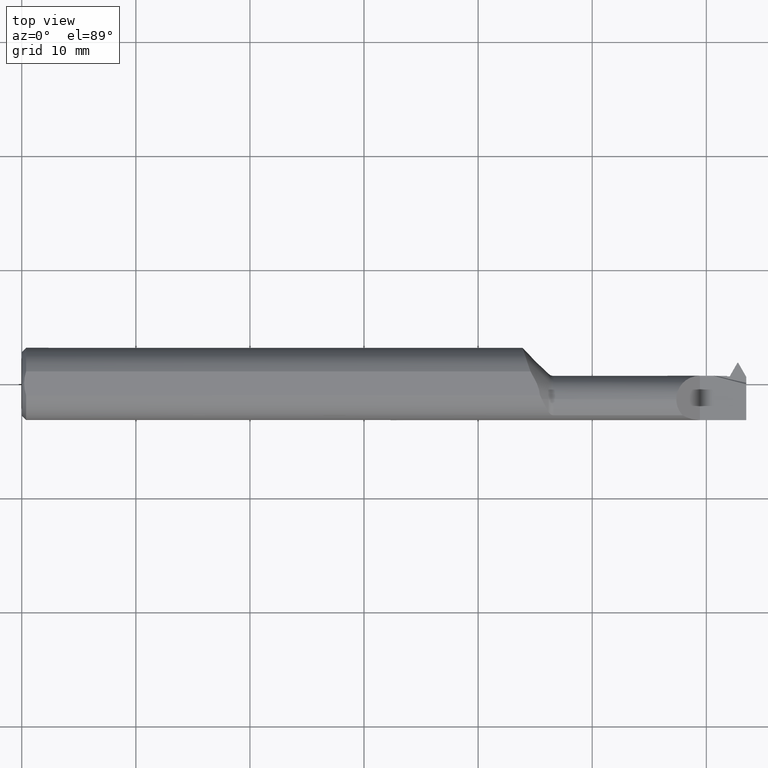
[diagram: clean part render]
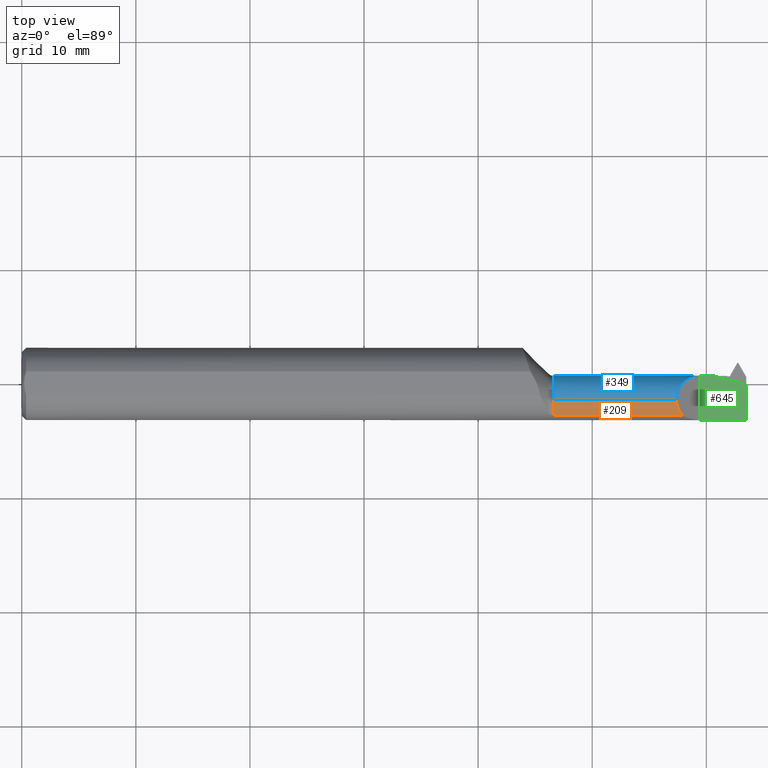
[diagram: same view with three faces highlighted in distinct colors, each labeled with its STEP entity id]
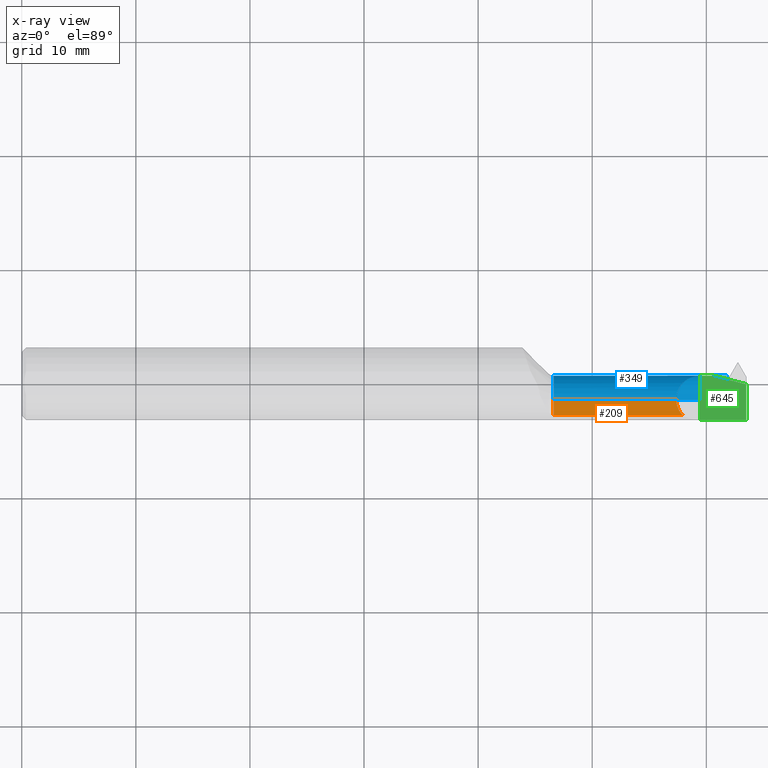
[diagram: x-ray of the same camera — body ghosted, the three highlighted faces saturated]
A machine part, top view with three faces highlighted in distinct colors.
The next image is the same camera in x-ray (body ghosted, the three faces saturated) — at least one of them is partly hidden behind the body in this view.
Their STEP definitions:

[orange] entity #209 — the highlighted cylindrical surface (edge-blend (fillet) strip) has radius 2.0828 mm, axis along (-1, -0, -0).
#6 = CARTESIAN_POINT ( 'NONE',  ( 2.258649999999999380, -0.05384999999999989101, 0.08200000000000000344 ) ) ;
#7 = DIRECTION ( 'NONE',  ( 1.000000000000000000, 0.000000000000000000, 0.000000000000000000 ) ) ;
#10 = EDGE_CURVE ( 'NONE', #181, #573, #875, .T. ) ;
#27 = CARTESIAN_POINT ( 'NONE',  ( 1.824999999999999956, -0.05384999999999989101, 0.000000000000000000 ) ) ;
#69 = CARTESIAN_POINT ( 'NONE',  ( 1.835355339059327129, -0.1092232590529249175, 0.06047976671464317527 ) ) ;
#95 = CIRCLE ( 'NONE', #994, 0.08200000000000000344 ) ;
#101 = ORIENTED_EDGE ( 'NONE', *, *, #801, .T. ) ;
#132 = DIRECTION ( 'NONE',  ( 1.000000000000000000, 0.000000000000000000, 0.000000000000000000 ) ) ;
#150 = LINE ( 'NONE', #226, #986 ) ;
#181 = VERTEX_POINT ( 'NONE', #315 ) ;
#191 = VERTEX_POINT ( 'NONE', #69 ) ;
#206 = DIRECTION ( 'NONE',  ( -1.000000000000000000, -0.000000000000000000, -0.000000000000000000 ) ) ;
#209 = ADVANCED_FACE ( 'NONE', ( #477 ), #262, .T. ) ;
#226 = CARTESIAN_POINT ( 'NONE',  ( 2.132500000000000284, -0.1092232590529249175, 0.06047976671464317527 ) ) ;
#228 = DIRECTION ( 'NONE',  ( 0.000000000000000000, 0.000000000000000000, 1.000000000000000000 ) ) ;
#262 = CYLINDRICAL_SURFACE ( 'NONE', #794, 0.08200000000000000344 ) ;
#272 = ORIENTED_EDGE ( 'NONE', *, *, #324, .T. ) ;
#315 = CARTESIAN_POINT ( 'NONE',  ( 2.280170233285356840, -0.1092232590529250702, 0.06047976671464286996 ) ) ;
#324 = EDGE_CURVE ( 'NONE', #573, #708, #774, .T. ) ;
#369 = ORIENTED_EDGE ( 'NONE', *, *, #10, .T. ) ;
#377 = CARTESIAN_POINT ( 'NONE',  ( 2.266163611464082628, -0.09392495018146776453, 0.07448638853591689479 ) ) ;
#428 = DIRECTION ( 'NONE',  ( 0.000000000000000000, 0.000000000000000000, 1.000000000000000000 ) ) ;
#477 = FACE_OUTER_BOUND ( 'NONE', #887, .T. ) ;
#573 = VERTEX_POINT ( 'NONE', #6 ) ;
#621 = CARTESIAN_POINT ( 'NONE',  ( 1.824999999999999956, -0.05384999999999989101, 0.08200000000000000344 ) ) ;
#672 = CARTESIAN_POINT ( 'NONE',  ( 2.280170233285356840, -0.1092232590529250702, 0.06047976671464286996 ) ) ;
#708 = VERTEX_POINT ( 'NONE', #921 ) ;
#754 = CARTESIAN_POINT ( 'NONE',  ( 2.258649999999999380, -0.05384999999999989101, 0.08200000000000000344 ) ) ;
#774 = LINE ( 'NONE', #621, #1032 ) ;
#794 = AXIS2_PLACEMENT_3D ( 'NONE', #27, #908, #428 ) ;
#801 = EDGE_CURVE ( 'NONE', #708, #191, #95, .T. ) ;
#875 =( BOUNDED_CURVE ( )  B_SPLINE_CURVE ( 3, ( #672, #377, #997, #754 ),
 .UNSPECIFIED., .F., .T. ) 
 B_SPLINE_CURVE_WITH_KNOTS ( ( 4, 4 ),
 ( 5.541836096877562845, 6.283185307179586232 ),
 .UNSPECIFIED. ) 
 CURVE ( )  GEOMETRIC_REPRESENTATION_ITEM ( )  RATIONAL_B_SPLINE_CURVE ( ( 1.000000000000000000, 0.9547221238960315048, 0.9547221238960315048, 1.000000000000000000 ) ) 
 REPRESENTATION_ITEM ( '' )  );
#876 = EDGE_CURVE ( 'NONE', #191, #181, #150, .T. ) ;
#887 = EDGE_LOOP ( 'NONE', ( #369, #272, #101, #951 ) ) ;
#908 = DIRECTION ( 'NONE',  ( -1.000000000000000000, -0.000000000000000000, -0.000000000000000000 ) ) ;
#921 = CARTESIAN_POINT ( 'NONE',  ( 1.835355339059327129, -0.05384999999999989101, 0.08200000000000000344 ) ) ;
#935 = CARTESIAN_POINT ( 'NONE',  ( 1.835355339059327129, -0.05384999999999989101, 0.000000000000000000 ) ) ;
#951 = ORIENTED_EDGE ( 'NONE', *, *, #876, .T. ) ;
#986 = VECTOR ( 'NONE', #7, 39.37007874015748143 ) ;
#994 = AXIS2_PLACEMENT_3D ( 'NONE', #935, #132, #228 ) ;
#997 = CARTESIAN_POINT ( 'NONE',  ( 2.258649999999998936, -0.07459183475902490812, 0.08200000000000004508 ) ) ;
#1032 = VECTOR ( 'NONE', #206, 39.37007874015748143 ) ;

[blue] entity #349 — the highlighted cylindrical surface (edge-blend (fillet) strip) has radius 2.0828 mm, axis along (-1, -0, -0).
#2 = DIRECTION ( 'NONE',  ( 0.000000000000000000, 0.000000000000000000, 1.000000000000000000 ) ) ;
#6 = CARTESIAN_POINT ( 'NONE',  ( 2.258649999999999380, -0.05384999999999989101, 0.08200000000000000344 ) ) ;
#35 = EDGE_LOOP ( 'NONE', ( #176, #82, #292, #757, #738, #232, #425, #805, #59, #346, #979 ) ) ;
#57 = CARTESIAN_POINT ( 'NONE',  ( 1.824999999999999956, -0.05384999999999988407, -0.08200000000000000344 ) ) ;
#59 = ORIENTED_EDGE ( 'NONE', *, *, #131, .T. ) ;
#73 = CARTESIAN_POINT ( 'NONE',  ( 2.399523977456262447, 0.02805503894144341023, -0.003945199107859770522 ) ) ;
#82 = ORIENTED_EDGE ( 'NONE', *, *, #88, .T. ) ;
#88 = EDGE_CURVE ( 'NONE', #341, #384, #984, .T. ) ;
#90 = CARTESIAN_POINT ( 'NONE',  ( 2.340000000000000302, -0.05384999999999989101, 0.000000000000000000 ) ) ;
#111 = VECTOR ( 'NONE', #212, 39.37007874015748143 ) ;
#121 = DIRECTION ( 'NONE',  ( -1.000000000000000000, -0.000000000000000000, -0.000000000000000000 ) ) ;
#122 = EDGE_CURVE ( 'NONE', #384, #708, #763, .T. ) ;
#123 = VERTEX_POINT ( 'NONE', #1025 ) ;
#128 = CARTESIAN_POINT ( 'NONE',  ( 2.340000000000000302, 0.02815000000000009855, -6.429183357567478880E-17 ) ) ;
#131 = EDGE_CURVE ( 'NONE', #123, #149, #701, .T. ) ;
#149 = VERTEX_POINT ( 'NONE', #630 ) ;
#152 = B_SPLINE_CURVE_WITH_KNOTS ( 'NONE', 3,
 ( #478, #950, #567, #73 ),
 .UNSPECIFIED., .F., .F.,
 ( 4, 4 ),
 ( 0.01074578879196592257, 0.01108854157193599893 ),
 .UNSPECIFIED. ) ;
#161 = DIRECTION ( 'NONE',  ( 1.000000000000000000, 0.000000000000000000, 0.000000000000000000 ) ) ;
#165 = VERTEX_POINT ( 'NONE', #949 ) ;
#176 = ORIENTED_EDGE ( 'NONE', *, *, #624, .T. ) ;
#177 = EDGE_CURVE ( 'NONE', #249, #688, #387, .T. ) ;
#192 = VERTEX_POINT ( 'NONE', #705 ) ;
#193 = CARTESIAN_POINT ( 'NONE',  ( 2.340000000000000302, 0.02814742374001769076, 0.0006500000000000178595 ) ) ;
#206 = DIRECTION ( 'NONE',  ( -1.000000000000000000, -0.000000000000000000, -0.000000000000000000 ) ) ;
#212 = DIRECTION ( 'NONE',  ( -1.000000000000000000, -0.000000000000000000, -0.000000000000000000 ) ) ;
#232 = ORIENTED_EDGE ( 'NONE', *, *, #933, .T. ) ;
#234 = VECTOR ( 'NONE', #817, 39.37007874015748143 ) ;
#249 = VERTEX_POINT ( 'NONE', #128 ) ;
#292 = ORIENTED_EDGE ( 'NONE', *, *, #122, .T. ) ;
#324 = EDGE_CURVE ( 'NONE', #573, #708, #774, .T. ) ;
#328 = VERTEX_POINT ( 'NONE', #378 ) ;
#338 = VECTOR ( 'NONE', #1028, 39.37007874015748143 ) ;
#341 = VERTEX_POINT ( 'NONE', #861 ) ;
#346 = ORIENTED_EDGE ( 'NONE', *, *, #852, .F. ) ;
#347 =( BOUNDED_CURVE ( )  B_SPLINE_CURVE ( 3, ( #883, #576, #653, #939 ),
 .UNSPECIFIED., .F., .T. ) 
 B_SPLINE_CURVE_WITH_KNOTS ( ( 4, 4 ),
 ( 1.131834028227988398, 1.522665561652827737 ),
 .UNSPECIFIED. ) 
 CURVE ( )  GEOMETRIC_REPRESENTATION_ITEM ( )  RATIONAL_B_SPLINE_CURVE ( ( 1.000000000000000000, 0.9873113487225133600, 0.9873113487225133600, 1.000000000000000000 ) ) 
 REPRESENTATION_ITEM ( '' )  );
#349 = ADVANCED_FACE ( 'NONE', ( #836 ), #466, .T. ) ;
#375 = CARTESIAN_POINT ( 'NONE',  ( 2.386681822674789899, 0.02815000000000011937, -2.186978745351726572E-16 ) ) ;
#378 = CARTESIAN_POINT ( 'NONE',  ( 2.428225840268386726, 0.02037584026838705140, -0.03485003065209425072 ) ) ;
#384 = VERTEX_POINT ( 'NONE', #706 ) ;
#387 = LINE ( 'NONE', #391, #712 ) ;
#391 = CARTESIAN_POINT ( 'NONE',  ( 1.824999999999999956, 0.02815000000000011590, -6.429183357567480113E-17 ) ) ;
#416 = CARTESIAN_POINT ( 'NONE',  ( 2.258649999999999380, -0.006116875425545298568, 0.08200000000000001732 ) ) ;
#425 = ORIENTED_EDGE ( 'NONE', *, *, #177, .T. ) ;
#431 = AXIS2_PLACEMENT_3D ( 'NONE', #1008, #121, #442 ) ;
#432 = EDGE_CURVE ( 'NONE', #688, #123, #152, .T. ) ;
#442 = DIRECTION ( 'NONE',  ( 0.000000000000000000, 0.000000000000000000, 1.000000000000000000 ) ) ;
#466 = CYLINDRICAL_SURFACE ( 'NONE', #431, 0.08200000000000000344 ) ;
#473 = CARTESIAN_POINT ( 'NONE',  ( 1.824999999999999956, 0.02805503894144341023, -0.003945199107859824299 ) ) ;
#478 = CARTESIAN_POINT ( 'NONE',  ( 2.386681822674789899, 0.02815000000000011937, -2.186978745351726572E-16 ) ) ;
#502 = CARTESIAN_POINT ( 'NONE',  ( 2.292268375095528832, 0.02776905141107380987, 0.04838162490447082964 ) ) ;
#506 = AXIS2_PLACEMENT_3D ( 'NONE', #521, #749, #912 ) ;
#521 = CARTESIAN_POINT ( 'NONE',  ( 1.835355339059327129, -0.05384999999999989101, 0.000000000000000000 ) ) ;
#567 = CARTESIAN_POINT ( 'NONE',  ( 2.395228030087771742, 0.02811592873384876137, -0.002681085261703490194 ) ) ;
#573 = VERTEX_POINT ( 'NONE', #6 ) ;
#576 = CARTESIAN_POINT ( 'NONE',  ( 2.430117547771786235, 0.02494514118222514870, -0.02511803921844079496 ) ) ;
#582 = DIRECTION ( 'NONE',  ( 0.000000000000000000, 0.000000000000000000, 1.000000000000000000 ) ) ;
#589 = EDGE_CURVE ( 'NONE', #573, #165, #660, .T. ) ;
#599 = CARTESIAN_POINT ( 'NONE',  ( 1.824999999999999956, 0.02037584026838705487, -0.03485003065209421602 ) ) ;
#621 = CARTESIAN_POINT ( 'NONE',  ( 1.824999999999999956, -0.05384999999999989101, 0.08200000000000000344 ) ) ;
#624 = EDGE_CURVE ( 'NONE', #192, #341, #795, .T. ) ;
#630 = CARTESIAN_POINT ( 'NONE',  ( 2.434233130977804471, 0.02805503894144332350, -0.003945199107859838177 ) ) ;
#640 = CIRCLE ( 'NONE', #968, 0.08200000000000000344 ) ;
#653 = CARTESIAN_POINT ( 'NONE',  ( 2.432145712685583216, 0.02753777104952166710, -0.01468403526611703099 ) ) ;
#660 =( BOUNDED_CURVE ( )  B_SPLINE_CURVE ( 3, ( #977, #416, #502, #193 ),
 .UNSPECIFIED., .F., .T. ) 
 B_SPLINE_CURVE_WITH_KNOTS ( ( 4, 4 ),
 ( 0.000000000000000000, 1.562869414511035115 ),
 .UNSPECIFIED. ) 
 CURVE ( )  GEOMETRIC_REPRESENTATION_ITEM ( )  RATIONAL_B_SPLINE_CURVE ( ( 1.000000000000000000, 0.8066025377375481975, 0.8066025377375481975, 1.000000000000000000 ) ) 
 REPRESENTATION_ITEM ( '' )  );
#688 = VERTEX_POINT ( 'NONE', #375 ) ;
#701 = LINE ( 'NONE', #473, #338 ) ;
#705 = CARTESIAN_POINT ( 'NONE',  ( 2.440000000000000391, 0.02037584026838702364, -0.03485003065209427847 ) ) ;
#706 = CARTESIAN_POINT ( 'NONE',  ( 1.835355339059327129, -0.05384999999999988407, -0.08200000000000000344 ) ) ;
#708 = VERTEX_POINT ( 'NONE', #921 ) ;
#712 = VECTOR ( 'NONE', #161, 39.37007874015748143 ) ;
#724 = DIRECTION ( 'NONE',  ( -1.000000000000000000, -0.000000000000000000, -0.000000000000000000 ) ) ;
#728 = DIRECTION ( 'NONE',  ( -1.000000000000000000, -0.000000000000000000, -0.000000000000000000 ) ) ;
#738 = ORIENTED_EDGE ( 'NONE', *, *, #589, .T. ) ;
#749 = DIRECTION ( 'NONE',  ( 1.000000000000000000, 0.000000000000000000, 0.000000000000000000 ) ) ;
#757 = ORIENTED_EDGE ( 'NONE', *, *, #324, .F. ) ;
#763 = CIRCLE ( 'NONE', #506, 0.08200000000000000344 ) ;
#774 = LINE ( 'NONE', #621, #1032 ) ;
#795 = CIRCLE ( 'NONE', #934, 0.08200000000000000344 ) ;
#805 = ORIENTED_EDGE ( 'NONE', *, *, #432, .T. ) ;
#817 = DIRECTION ( 'NONE',  ( -1.000000000000000000, -0.000000000000000000, -0.000000000000000000 ) ) ;
#836 = FACE_OUTER_BOUND ( 'NONE', #35, .T. ) ;
#852 = EDGE_CURVE ( 'NONE', #328, #149, #347, .T. ) ;
#861 = CARTESIAN_POINT ( 'NONE',  ( 2.440000000000000391, -0.05384999999999989795, -0.08200000000000000344 ) ) ;
#883 = CARTESIAN_POINT ( 'NONE',  ( 2.428225840268386726, 0.02037584026838705140, -0.03485003065209425072 ) ) ;
#912 = DIRECTION ( 'NONE',  ( 0.000000000000000000, 0.000000000000000000, 1.000000000000000000 ) ) ;
#921 = CARTESIAN_POINT ( 'NONE',  ( 1.835355339059327129, -0.05384999999999989101, 0.08200000000000000344 ) ) ;
#933 = EDGE_CURVE ( 'NONE', #165, #249, #640, .T. ) ;
#934 = AXIS2_PLACEMENT_3D ( 'NONE', #960, #728, #582 ) ;
#939 = CARTESIAN_POINT ( 'NONE',  ( 2.434233130977804471, 0.02805503894144332350, -0.003945199107859838177 ) ) ;
#949 = CARTESIAN_POINT ( 'NONE',  ( 2.340000000000000302, 0.02814742374001769076, 0.0006500000000000178595 ) ) ;
#950 = CARTESIAN_POINT ( 'NONE',  ( 2.390946759675786293, 0.02815000000000027550, -0.001367891246638649593 ) ) ;
#959 = EDGE_CURVE ( 'NONE', #192, #328, #989, .T. ) ;
#960 = CARTESIAN_POINT ( 'NONE',  ( 2.440000000000000391, -0.05384999999999989101, 0.000000000000000000 ) ) ;
#968 = AXIS2_PLACEMENT_3D ( 'NONE', #90, #724, #2 ) ;
#977 = CARTESIAN_POINT ( 'NONE',  ( 2.258649999999999380, -0.05384999999999989101, 0.08200000000000000344 ) ) ;
#979 = ORIENTED_EDGE ( 'NONE', *, *, #959, .F. ) ;
#984 = LINE ( 'NONE', #57, #111 ) ;
#989 = LINE ( 'NONE', #599, #234 ) ;
#1008 = CARTESIAN_POINT ( 'NONE',  ( 1.824999999999999956, -0.05384999999999989101, 0.000000000000000000 ) ) ;
#1025 = CARTESIAN_POINT ( 'NONE',  ( 2.399523977456262447, 0.02805503894144341023, -0.003945199107859770522 ) ) ;
#1028 = DIRECTION ( 'NONE',  ( 1.000000000000000000, 0.000000000000000000, 0.000000000000000000 ) ) ;
#1032 = VECTOR ( 'NONE', #206, 39.37007874015748143 ) ;

[green] entity #645 — the highlighted planar face has unit normal (-0, 0, -1).
#15 = DIRECTION ( 'NONE',  ( -1.000000000000000000, 0.000000000000000000, 0.000000000000000000 ) ) ;
#25 = AXIS2_PLACEMENT_3D ( 'NONE', #646, #741, #15 ) ;
#33 = CARTESIAN_POINT ( 'NONE',  ( 2.500000000000000000, -0.1248500000000000026, -6.429183357567480113E-17 ) ) ;
#89 = CARTESIAN_POINT ( 'NONE',  ( 2.423875044901239839, 0.01613896896465522035, -6.829619984160658046E-17 ) ) ;
#128 = CARTESIAN_POINT ( 'NONE',  ( 2.340000000000000302, 0.02815000000000009855, -6.429183357567478880E-17 ) ) ;
#135 = DIRECTION ( 'NONE',  ( -0.000000000000000000, 1.000000000000000000, -0.000000000000000000 ) ) ;
#161 = DIRECTION ( 'NONE',  ( 1.000000000000000000, 0.000000000000000000, 0.000000000000000000 ) ) ;
#171 = VECTOR ( 'NONE', #673, 39.37007874015748143 ) ;
#177 = EDGE_CURVE ( 'NONE', #249, #688, #387, .T. ) ;
#196 = LINE ( 'NONE', #33, #171 ) ;
#200 = DIRECTION ( 'NONE',  ( -0.000000000000000000, 1.000000000000000000, -0.000000000000000000 ) ) ;
#213 = LINE ( 'NONE', #388, #355 ) ;
#230 = EDGE_CURVE ( 'NONE', #475, #607, #196, .T. ) ;
#249 = VERTEX_POINT ( 'NONE', #128 ) ;
#250 = CARTESIAN_POINT ( 'NONE',  ( 2.500000000000000000, -0.1248499999999998639, -6.429183357567480113E-17 ) ) ;
#258 = PLANE ( 'NONE',  #25 ) ;
#281 = EDGE_CURVE ( 'NONE', #607, #249, #213, .T. ) ;
#326 = ORIENTED_EDGE ( 'NONE', *, *, #669, .F. ) ;
#355 = VECTOR ( 'NONE', #135, 39.37007874015748143 ) ;
#361 = CARTESIAN_POINT ( 'NONE',  ( 2.500000000000000000, -0.001383092418180902712, -6.429183357567480113E-17 ) ) ;
#375 = CARTESIAN_POINT ( 'NONE',  ( 2.386681822674789899, 0.02815000000000011937, -2.186978745351726572E-16 ) ) ;
#387 = LINE ( 'NONE', #391, #712 ) ;
#388 = CARTESIAN_POINT ( 'NONE',  ( 2.340000000000000302, 0.2999999999999999889, -6.429183357567480113E-17 ) ) ;
#391 = CARTESIAN_POINT ( 'NONE',  ( 1.824999999999999956, 0.02815000000000011590, -6.429183357567480113E-17 ) ) ;
#409 = CARTESIAN_POINT ( 'NONE',  ( 2.340000000000000302, -0.1248499999999999888, -6.429183357567478880E-17 ) ) ;
#420 = CARTESIAN_POINT ( 'NONE',  ( 2.500000000000000000, 0.2999999999999999889, -6.429183357567480113E-17 ) ) ;
#433 = CARTESIAN_POINT ( 'NONE',  ( 2.500000000000000000, -0.001383092418180902712, -6.429183357567480113E-17 ) ) ;
#475 = VERTEX_POINT ( 'NONE', #250 ) ;
#504 = EDGE_LOOP ( 'NONE', ( #326, #768, #1035, #898, #932 ) ) ;
#518 = LINE ( 'NONE', #420, #975 ) ;
#607 = VERTEX_POINT ( 'NONE', #409 ) ;
#619 = EDGE_CURVE ( 'NONE', #475, #781, #518, .T. ) ;
#645 = ADVANCED_FACE ( 'NONE', ( #885 ), #258, .F. ) ;
#646 = CARTESIAN_POINT ( 'NONE',  ( 2.340000000000000302, 0.2999999999999999889, -6.429183357567480113E-17 ) ) ;
#669 = EDGE_CURVE ( 'NONE', #688, #781, #800, .T. ) ;
#673 = DIRECTION ( 'NONE',  ( -1.000000000000000000, -0.000000000000000000, -0.000000000000000000 ) ) ;
#688 = VERTEX_POINT ( 'NONE', #375 ) ;
#712 = VECTOR ( 'NONE', #161, 39.37007874015748143 ) ;
#741 = DIRECTION ( 'NONE',  ( -0.000000000000000000, 0.000000000000000000, -1.000000000000000000 ) ) ;
#768 = ORIENTED_EDGE ( 'NONE', *, *, #177, .F. ) ;
#781 = VERTEX_POINT ( 'NONE', #361 ) ;
#800 =( BOUNDED_CURVE ( )  B_SPLINE_CURVE ( 3, ( #982, #89, #826, #433 ),
 .UNSPECIFIED., .F., .T. ) 
 B_SPLINE_CURVE_WITH_KNOTS ( ( 4, 4 ),
 ( 5.972667297999737279, 6.086884453394914907 ),
 .UNSPECIFIED. ) 
 CURVE ( )  GEOMETRIC_REPRESENTATION_ITEM ( )  RATIONAL_B_SPLINE_CURVE ( ( 1.000000000000000000, 0.9989131655485126160, 0.9989131655485126160, 1.000000000000000000 ) ) 
 REPRESENTATION_ITEM ( '' )  );
#826 = CARTESIAN_POINT ( 'NONE',  ( 2.461688868042041900, 0.006283893990257508402, -6.829619984160658046E-17 ) ) ;
#885 = FACE_OUTER_BOUND ( 'NONE', #504, .T. ) ;
#898 = ORIENTED_EDGE ( 'NONE', *, *, #230, .F. ) ;
#932 = ORIENTED_EDGE ( 'NONE', *, *, #619, .T. ) ;
#975 = VECTOR ( 'NONE', #200, 39.37007874015748143 ) ;
#982 = CARTESIAN_POINT ( 'NONE',  ( 2.386681822674789899, 0.02815000000000011937, -2.186978745351726572E-16 ) ) ;
#1035 = ORIENTED_EDGE ( 'NONE', *, *, #281, .F. ) ;